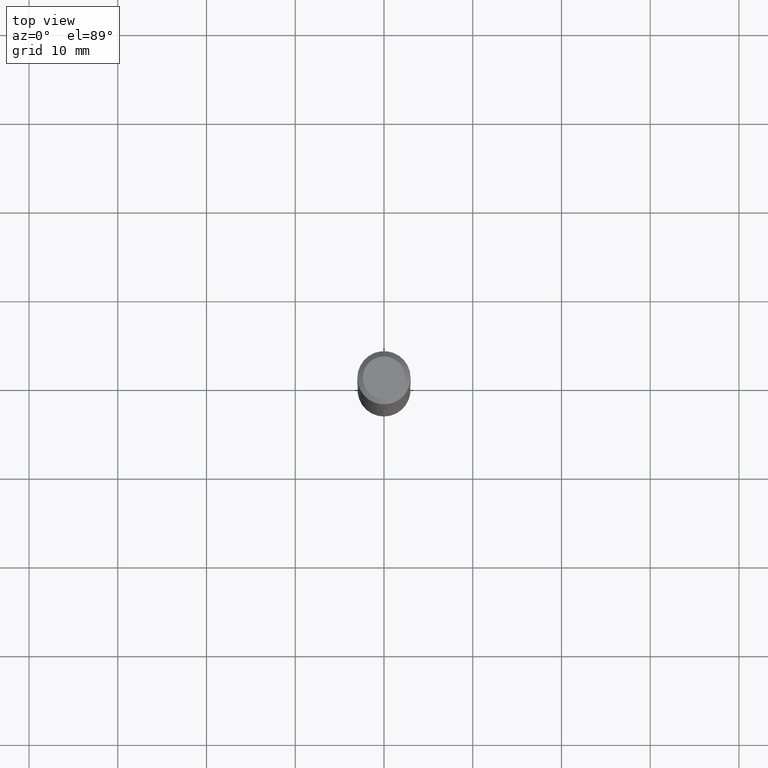
[diagram: clean part render]
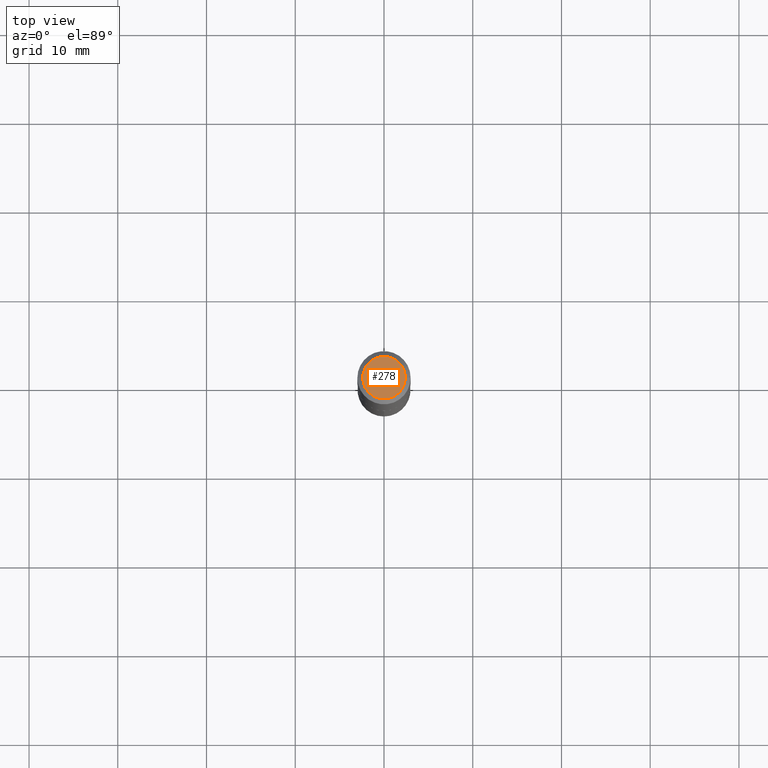
[diagram: same view with one face highlighted and labeled with its STEP entity id]
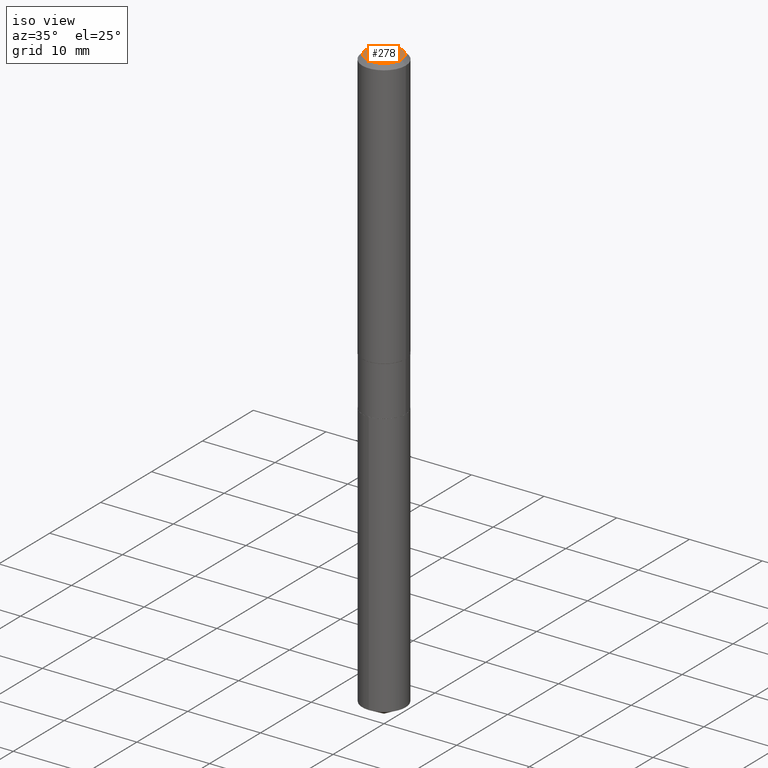
[diagram: same view with one face highlighted and labeled with its STEP entity id]
A machine part, top view. The second image highlights one B-rep face of the part: STEP entity #278.
A second angle (iso view) of the same face is appended — the face is thin or edge-on in the first view.
In plain terms, the highlighted planar face has unit normal (0, -0, -1).
Its self-contained STEP definition (entity closure, byte-faithful):
#11 = DIRECTION ( 'NONE',  ( -2.445468806185136597E-29, 3.491481338843145583E-15, 1.000000000000000000 ) ) ;
#23 = AXIS2_PLACEMENT_3D ( 'NONE', #61, #292, #476 ) ;
#42 = AXIS2_PLACEMENT_3D ( 'NONE', #389, #11, #251 ) ;
#51 = CIRCLE ( 'NONE', #23, 0.09447999999999998066 ) ;
#61 = CARTESIAN_POINT ( 'NONE',  ( 6.603013411620882309E-46, -9.427353171913646324E-32, -2.700101262760083747E-17 ) ) ;
#66 = DIRECTION ( 'NONE',  ( 2.438088387897960049E-29, -3.491481338843145188E-15, -1.000000000000000000 ) ) ;
#136 = FACE_OUTER_BOUND ( 'NONE', #326, .T. ) ;
#189 = EDGE_CURVE ( 'NONE', #225, #247, #433, .T. ) ;
#201 = DIRECTION ( 'NONE',  ( -1.000000000000000000, 6.982962677686265922E-15, -4.876176775795935793E-29 ) ) ;
#225 = VERTEX_POINT ( 'NONE', #282 ) ;
#247 = VERTEX_POINT ( 'NONE', #428 ) ;
#251 = DIRECTION ( 'NONE',  ( 1.000000000000000000, -6.982962677686267499E-15, 4.875432709231658792E-29 ) ) ;
#278 = ADVANCED_FACE ( 'NONE', ( #136 ), #319, .F. ) ;
#282 = CARTESIAN_POINT ( 'NONE',  ( 0.09447999999999998066, -7.704367267948738690E-16, -2.700101262759583929E-17 ) ) ;
#292 = DIRECTION ( 'NONE',  ( -2.445468806185136597E-29, 3.491481338843145583E-15, 1.000000000000000000 ) ) ;
#319 = PLANE ( 'NONE',  #392 ) ;
#326 = EDGE_LOOP ( 'NONE', ( #473, #345 ) ) ;
#345 = ORIENTED_EDGE ( 'NONE', *, *, #189, .T. ) ;
#389 = CARTESIAN_POINT ( 'NONE',  ( 6.603013411620882309E-46, -9.427353171913646324E-32, -2.700101262760083747E-17 ) ) ;
#392 = AXIS2_PLACEMENT_3D ( 'NONE', #398, #66, #201 ) ;
#398 = CARTESIAN_POINT ( 'NONE',  ( 3.301506705810441154E-46, -4.713676585956823162E-32, -1.350050631380041873E-17 ) ) ;
#428 = CARTESIAN_POINT ( 'NONE',  ( -0.09447999999999998066, 7.009847083995354710E-16, -2.700101262760559836E-17 ) ) ;
#433 = CIRCLE ( 'NONE', #42, 0.09447999999999998066 ) ;
#473 = ORIENTED_EDGE ( 'NONE', *, *, #487, .T. ) ;
#476 = DIRECTION ( 'NONE',  ( 1.000000000000000000, -6.982962677686267499E-15, 4.875432709231658792E-29 ) ) ;
#487 = EDGE_CURVE ( 'NONE', #247, #225, #51, .T. ) ;